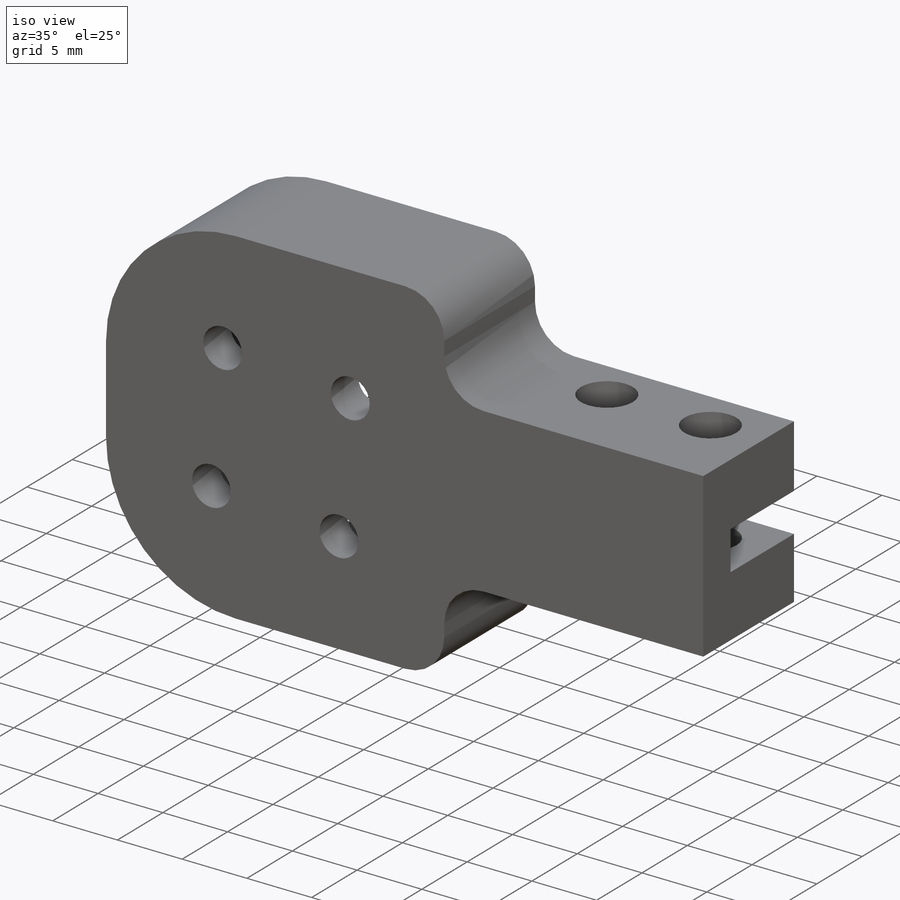
[diagram: iso view]
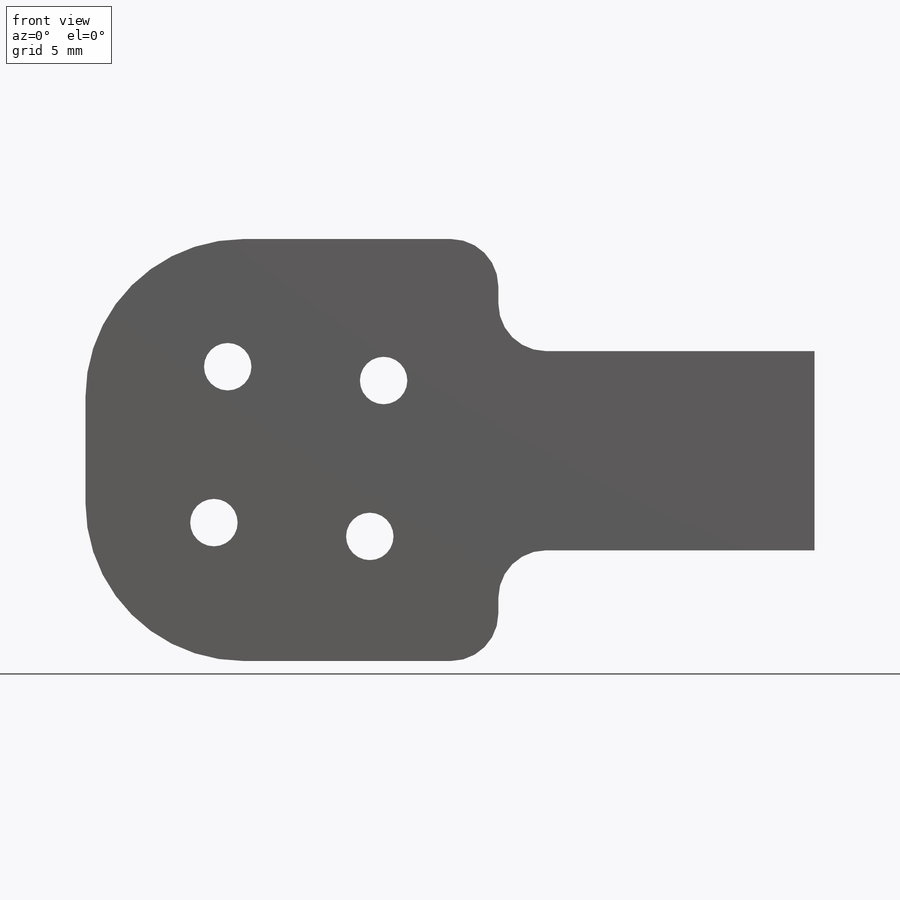
[diagram: front view]
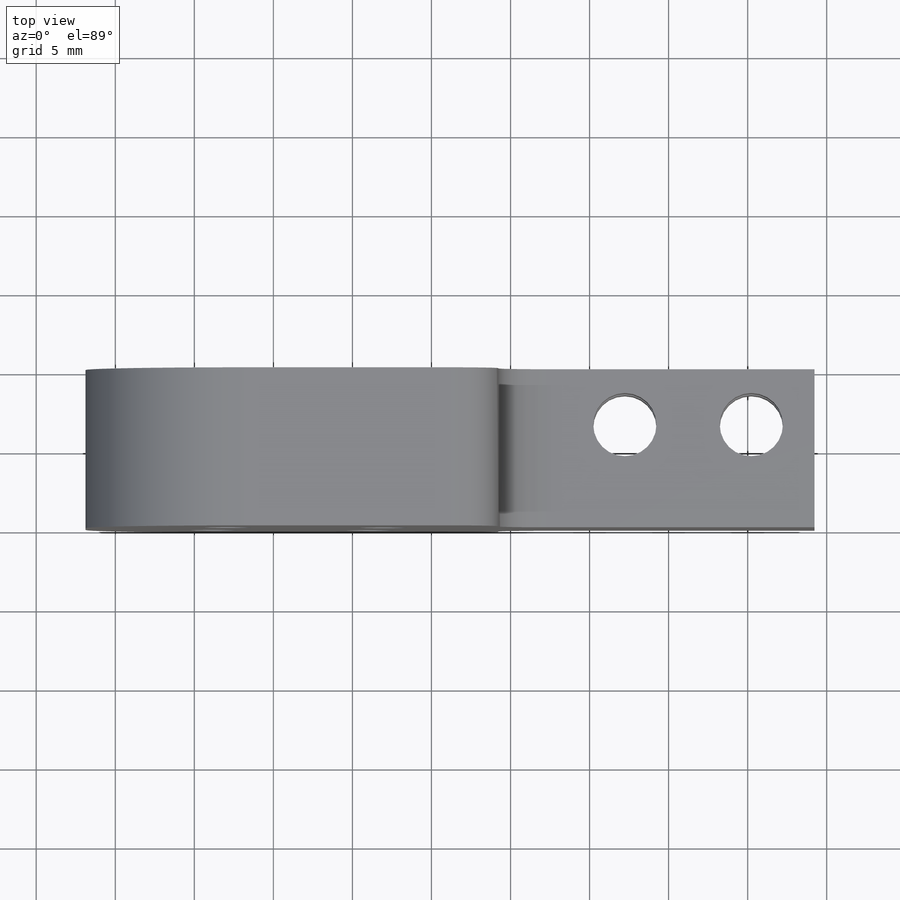
[diagram: top view]
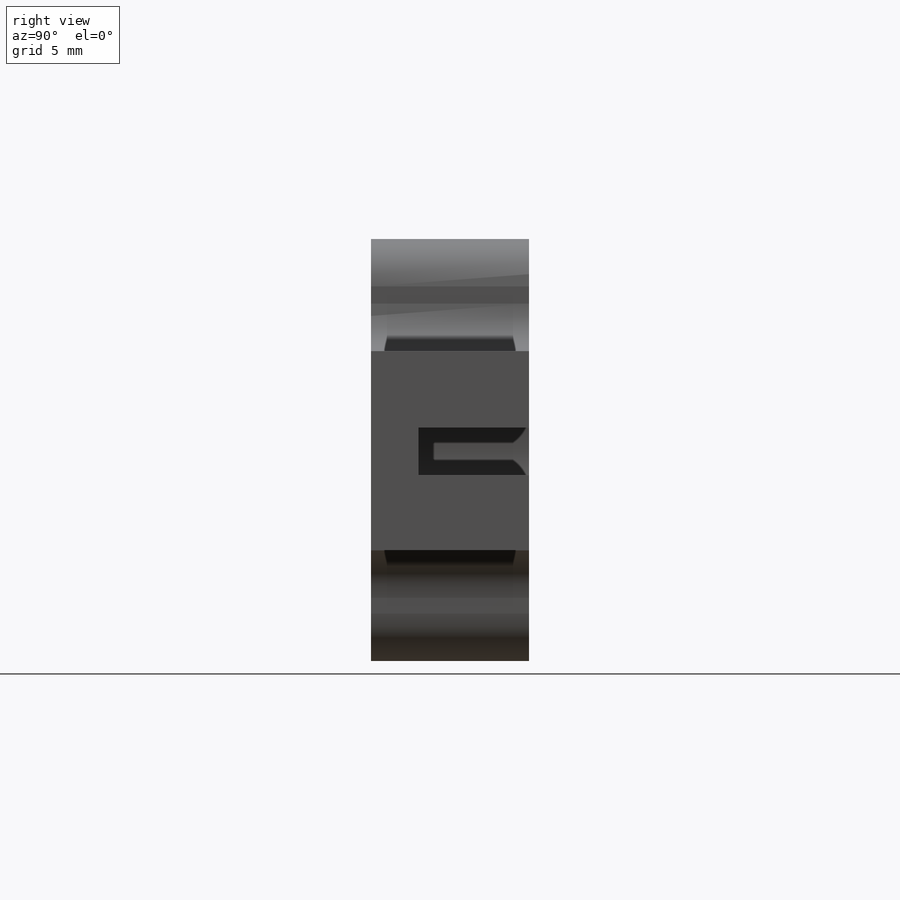
[diagram: right view]
SOLIDWORKS PART (.sldprt)
format: sldprt  version: not decoded by parser v0  size: 327,168 bytes
history: native  units: mm
features: sketch x12, cut_extrude x11, plane x3, fillet x3, material x1, extrude x1, pattern_circular x1 (+10 scaffold rows collapsed)
feature tree (42):
  scaffold x10  (default folders/planes/origin — collapsed)
  material  "Matériau <non spécifié>"
  plane  "Plan de face"
  plane  "Plan de dessus"
  plane  "Plan de droite"
  sketch  "Esquisse1"  dims[D1=100.0mm]
  extrude  "Boss.-Extru.1"  Depth=10mm
  sketch  "Esquisse2"  dims[c1.D1=~29.345802mm c2.D1=~29.345802mm c3.D1=20.0mm c3.D2=0.0mm c4.D2=40.0mm]
  cut_extrude  "Enlèv. mat.-Extru.1"  Depth=7mm
  sketch  "Esquisse4"  dims[D1=3.0mm D2=1.5mm]
  cut_extrude  "Enlèv. mat.-Extru.2"  Depth=7mm
  sketch  "Esquisse6"
  cut_extrude  "Enlèv. mat.-Extru.3"  Depth=10mm
  sketch  "Esquisse8"
  cut_extrude  "Enlèv. mat.-Extru.4"  Depth=10mm
  sketch  "Esquisse9"
  cut_extrude  "Enlèv. mat.-Extru.5"  Depth=10mm
  sketch  "Esquisse10"
  cut_extrude  "Enlèv. mat.-Extru.6"  Depth=10mm
  sketch  "Esquisse11"  dims[c1.D1=3.0mm c1.D2=3.0mm c1.D3=3.0mm c2.D1=7.0mm c2.D3=9.0mm c3.D1=7.0mm]
  cut_extrude  "Enlèv. mat.-Extru.7"  Depth=10mm
  fillet  "Congé1"  Radius=10mm
  sketch  "Esquisse16"  dims[D1=20.0mm]
  cut_extrude  "Enlèv. mat.-Extru.11"  Depth=10mm
  fillet  "Congé2"  Radius=3mm
  pattern_circular  "Répétition circulaire1"  Count=4 Angle=360deg
  sketch  "Esquisse17"  dims[D1=20.0mm]
  cut_extrude  "Enlèv. mat.-Extru.12"  Depth=10mm
  fillet  "Congé3"  Radius=3mm
  sketch  "Esquisse19"  dims[c1.D1=2.0mm c1.D2=2.0mm c1.D3=2.0mm c1.D4=2.0mm c1.D5=1.0mm c2.D1=4.0mm c2.D2=3.5mm c2.D3=8.0mm c2.D4=3.5mm]
  cut_extrude  "Enlèv. mat.-Extru.13"  Depth=20mm
  cut_extrude  "Enlèv. mat.-Extru.14"  [1 undecoded]
  sketch  "Esquisse19<3>"  dims[D1=20.0mm]
decode coverage: 23 of 28 modeling features carry decoded parameters
note: ~ marks probable driven/reference dimensions
note: 1 parameter value undecoded
note: suppression state not decoded; provenance and decode notes live in map.json
